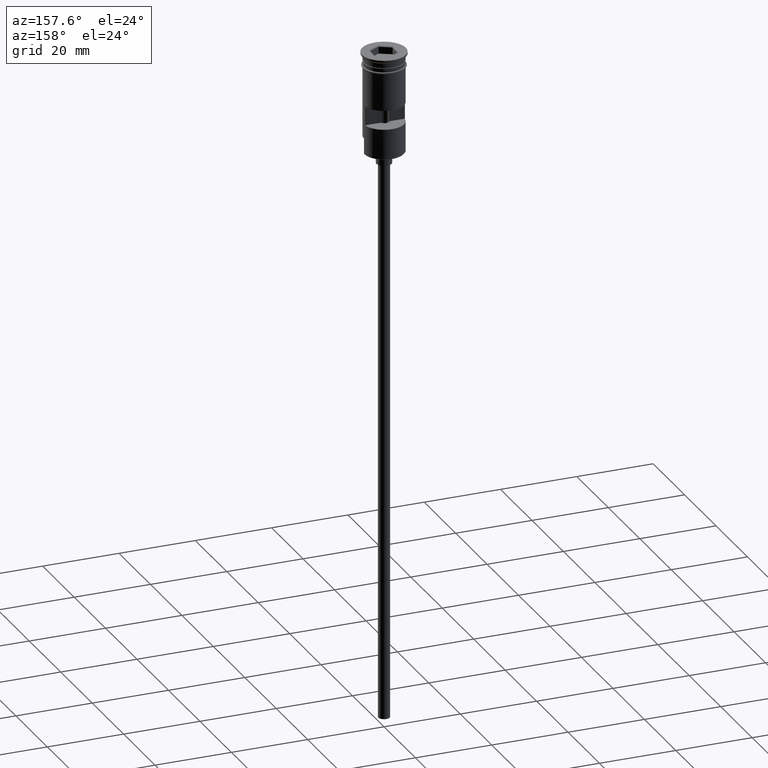
[diagram: clean part render]
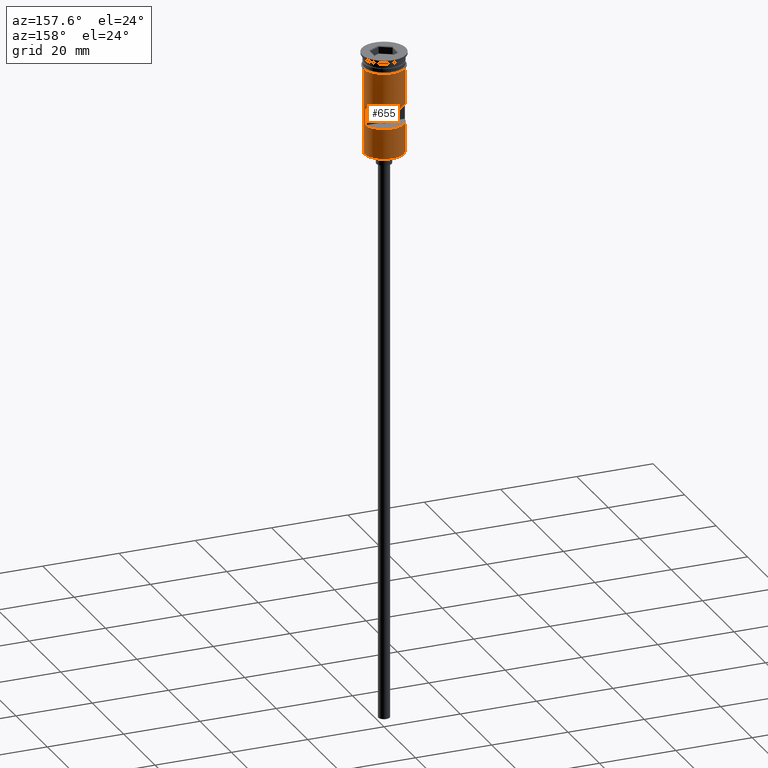
[diagram: same view with one face highlighted and labeled with its STEP entity id]
A machine part, auxiliary view. The second image highlights one B-rep face of the part: STEP entity #655.
In plain terms, the highlighted cylindrical surface (edge-blend (fillet) strip) has radius 5.25 mm, axis along (-0, -0, 1).
Its self-contained STEP definition (entity closure, byte-faithful):
#2 = DIRECTION ( 'NONE',  ( -0.000000000000000000, -0.000000000000000000, 1.000000000000000000 ) ) ;
#27 = EDGE_CURVE ( 'NONE', #214, #1540, #542, .T. ) ;
#30 = CARTESIAN_POINT ( 'NONE',  ( -5.215601595214110375, 0.5999999999999998668, 0.000000000000000000 ) ) ;
#34 = AXIS2_PLACEMENT_3D ( 'NONE', #854, #1454, #974 ) ;
#61 = CIRCLE ( 'NONE', #270, 5.249999999999999112 ) ;
#78 = ORIENTED_EDGE ( 'NONE', *, *, #714, .F. ) ;
#82 = CARTESIAN_POINT ( 'NONE',  ( -5.249999999999994671, 0.000000000000000000, -22.29999999999998295 ) ) ;
#86 = VERTEX_POINT ( 'NONE', #1134 ) ;
#186 = DIRECTION ( 'NONE',  ( -1.000000000000000000, 0.000000000000000000, 0.000000000000000000 ) ) ;
#214 = VERTEX_POINT ( 'NONE', #1037 ) ;
#270 = AXIS2_PLACEMENT_3D ( 'NONE', #733, #1441, #1344 ) ;
#275 = ORIENTED_EDGE ( 'NONE', *, *, #947, .T. ) ;
#325 = ORIENTED_EDGE ( 'NONE', *, *, #1603, .F. ) ;
#376 = DIRECTION ( 'NONE',  ( -1.000000000000000000, 0.000000000000000000, 0.000000000000000000 ) ) ;
#381 = LINE ( 'NONE', #1500, #1375 ) ;
#387 = VECTOR ( 'NONE', #553, 1000.000000000000000 ) ;
#409 = DIRECTION ( 'NONE',  ( -0.000000000000000000, -0.000000000000000000, 1.000000000000000000 ) ) ;
#419 = ORIENTED_EDGE ( 'NONE', *, *, #1509, .F. ) ;
#431 = DIRECTION ( 'NONE',  ( 0.000000000000000000, 0.000000000000000000, -1.000000000000000000 ) ) ;
#436 = CARTESIAN_POINT ( 'NONE',  ( 0.000000000000000000, 0.000000000000000000, -13.49999999999999822 ) ) ;
#447 = DIRECTION ( 'NONE',  ( -0.000000000000000000, -0.000000000000000000, 1.000000000000000000 ) ) ;
#503 = CARTESIAN_POINT ( 'NONE',  ( 5.249999999999999112, 0.000000000000000000, -3.799999999999998934 ) ) ;
#505 = CARTESIAN_POINT ( 'NONE',  ( 5.249999999999996447, 0.000000000000000000, 0.000000000000000000 ) ) ;
#526 = CARTESIAN_POINT ( 'NONE',  ( 5.215601595214110375, 0.5999999999999998668, 0.000000000000000000 ) ) ;
#528 = EDGE_CURVE ( 'NONE', #86, #817, #1036, .T. ) ;
#539 = CARTESIAN_POINT ( 'NONE',  ( -5.249999999999996447, 6.429395695523600208E-16, 0.000000000000000000 ) ) ;
#542 = CIRCLE ( 'NONE', #678, 5.249999999999996447 ) ;
#550 = DIRECTION ( 'NONE',  ( -0.000000000000000000, -0.000000000000000000, 1.000000000000000000 ) ) ;
#553 = DIRECTION ( 'NONE',  ( -0.000000000000000000, -0.000000000000000000, 1.000000000000000000 ) ) ;
#571 = EDGE_CURVE ( 'NONE', #1586, #1528, #381, .T. ) ;
#612 = EDGE_LOOP ( 'NONE', ( #1584, #275, #78, #1146, #419, #692 ) ) ;
#619 = VERTEX_POINT ( 'NONE', #1293 ) ;
#655 = ADVANCED_FACE ( 'NONE', ( #671, #842 ), #1322, .T. ) ;
#671 = FACE_BOUND ( 'NONE', #1188, .T. ) ;
#674 = VERTEX_POINT ( 'NONE', #1474 ) ;
#678 = AXIS2_PLACEMENT_3D ( 'NONE', #1119, #850, #376 ) ;
#692 = ORIENTED_EDGE ( 'NONE', *, *, #1477, .T. ) ;
#699 = DIRECTION ( 'NONE',  ( -0.000000000000000000, -3.730588120380232914E-16, -1.000000000000000000 ) ) ;
#714 = EDGE_CURVE ( 'NONE', #817, #948, #61, .T. ) ;
#733 = CARTESIAN_POINT ( 'NONE',  ( 0.000000000000000000, 0.000000000000000000, -3.799999999999998934 ) ) ;
#803 = CARTESIAN_POINT ( 'NONE',  ( 0.000000000000000000, 0.000000000000000000, -26.30000000000000071 ) ) ;
#809 = VECTOR ( 'NONE', #550, 1000.000000000000000 ) ;
#816 = CIRCLE ( 'NONE', #950, 5.249999999999996447 ) ;
#817 = VERTEX_POINT ( 'NONE', #503 ) ;
#828 = DIRECTION ( 'NONE',  ( 0.000000000000000000, -1.000000000000000000, 3.304235192336777484E-16 ) ) ;
#842 = FACE_OUTER_BOUND ( 'NONE', #612, .T. ) ;
#850 = DIRECTION ( 'NONE',  ( 0.000000000000000000, 0.000000000000000000, 1.000000000000000000 ) ) ;
#854 = CARTESIAN_POINT ( 'NONE',  ( 0.000000000000000000, 0.000000000000000000, 0.000000000000000000 ) ) ;
#916 = VECTOR ( 'NONE', #2, 1000.000000000000000 ) ;
#938 = LINE ( 'NONE', #539, #809 ) ;
#945 = LINE ( 'NONE', #1583, #1463 ) ;
#947 = EDGE_CURVE ( 'NONE', #1528, #948, #938, .T. ) ;
#948 = VERTEX_POINT ( 'NONE', #1284 ) ;
#950 = AXIS2_PLACEMENT_3D ( 'NONE', #436, #699, #828 ) ;
#970 = ORIENTED_EDGE ( 'NONE', *, *, #1279, .F. ) ;
#974 = DIRECTION ( 'NONE',  ( 1.000000000000000000, 0.000000000000000000, 0.000000000000000000 ) ) ;
#995 = EDGE_CURVE ( 'NONE', #1209, #214, #1529, .T. ) ;
#1009 = ORIENTED_EDGE ( 'NONE', *, *, #995, .F. ) ;
#1036 = LINE ( 'NONE', #505, #387 ) ;
#1037 = CARTESIAN_POINT ( 'NONE',  ( 5.215601595214109487, 0.5999999999999998668, -18.50000000000000355 ) ) ;
#1063 = CARTESIAN_POINT ( 'NONE',  ( -5.249999999999994671, 0.000000000000000000, -26.30000000000000071 ) ) ;
#1112 = LINE ( 'NONE', #30, #916 ) ;
#1119 = CARTESIAN_POINT ( 'NONE',  ( 0.000000000000000000, 0.000000000000000000, -18.50000000000000355 ) ) ;
#1134 = CARTESIAN_POINT ( 'NONE',  ( 5.249999999999996447, 6.429395695523600208E-16, -22.29999999999998295 ) ) ;
#1146 = ORIENTED_EDGE ( 'NONE', *, *, #528, .F. ) ;
#1177 = ORIENTED_EDGE ( 'NONE', *, *, #27, .F. ) ;
#1188 = EDGE_LOOP ( 'NONE', ( #1009, #325, #970, #1177 ) ) ;
#1209 = VERTEX_POINT ( 'NONE', #1445 ) ;
#1279 = EDGE_CURVE ( 'NONE', #1540, #674, #1112, .T. ) ;
#1284 = CARTESIAN_POINT ( 'NONE',  ( -5.249999999999999112, 6.429395695523603167E-16, -3.799999999999998934 ) ) ;
#1293 = CARTESIAN_POINT ( 'NONE',  ( 5.249999999999994671, 6.429395695523597250E-16, -26.30000000000000071 ) ) ;
#1295 = DIRECTION ( 'NONE',  ( 0.000000000000000000, 0.000000000000000000, 1.000000000000000000 ) ) ;
#1322 = CYLINDRICAL_SURFACE ( 'NONE', #34, 5.249999999999996447 ) ;
#1344 = DIRECTION ( 'NONE',  ( 1.000000000000000000, 0.000000000000000000, 0.000000000000000000 ) ) ;
#1375 = VECTOR ( 'NONE', #409, 1000.000000000000000 ) ;
#1441 = DIRECTION ( 'NONE',  ( -0.000000000000000000, -0.000000000000000000, 1.000000000000000000 ) ) ;
#1445 = CARTESIAN_POINT ( 'NONE',  ( 5.215601595214109487, 0.5999999999999998668, -13.49999999999999822 ) ) ;
#1454 = DIRECTION ( 'NONE',  ( -0.000000000000000000, -0.000000000000000000, 1.000000000000000000 ) ) ;
#1463 = VECTOR ( 'NONE', #447, 1000.000000000000000 ) ;
#1466 = AXIS2_PLACEMENT_3D ( 'NONE', #803, #1295, #186 ) ;
#1474 = CARTESIAN_POINT ( 'NONE',  ( -5.215601595214110375, 0.5999999999999998668, -13.49999999999999822 ) ) ;
#1477 = EDGE_CURVE ( 'NONE', #619, #1586, #1490, .T. ) ;
#1490 = CIRCLE ( 'NONE', #1466, 5.249999999999996447 ) ;
#1500 = CARTESIAN_POINT ( 'NONE',  ( -5.249999999999994671, 0.000000000000000000, -26.50000000000000000 ) ) ;
#1509 = EDGE_CURVE ( 'NONE', #619, #86, #945, .T. ) ;
#1528 = VERTEX_POINT ( 'NONE', #82 ) ;
#1529 = LINE ( 'NONE', #526, #1539 ) ;
#1539 = VECTOR ( 'NONE', #431, 1000.000000000000000 ) ;
#1540 = VERTEX_POINT ( 'NONE', #1559 ) ;
#1559 = CARTESIAN_POINT ( 'NONE',  ( -5.215601595214110375, 0.5999999999999998668, -18.50000000000000355 ) ) ;
#1583 = CARTESIAN_POINT ( 'NONE',  ( 5.249999999999994671, 6.429395695523597250E-16, -26.50000000000000000 ) ) ;
#1584 = ORIENTED_EDGE ( 'NONE', *, *, #571, .T. ) ;
#1586 = VERTEX_POINT ( 'NONE', #1063 ) ;
#1603 = EDGE_CURVE ( 'NONE', #674, #1209, #816, .T. ) ;